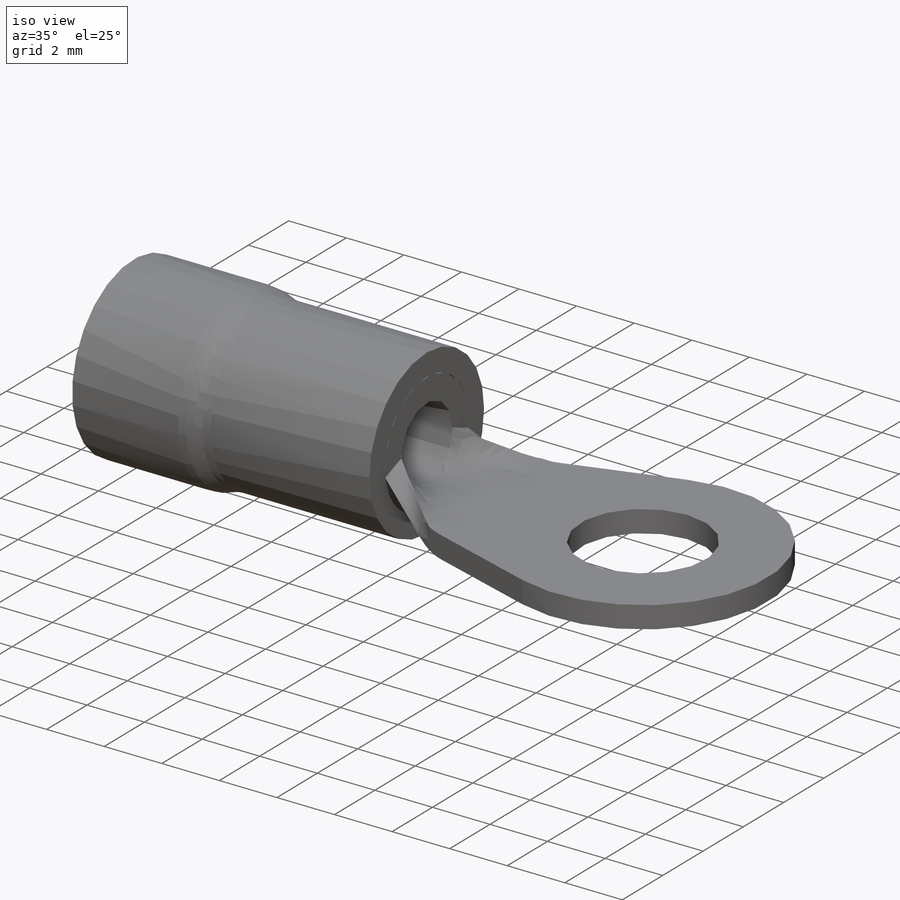
[diagram: iso view]
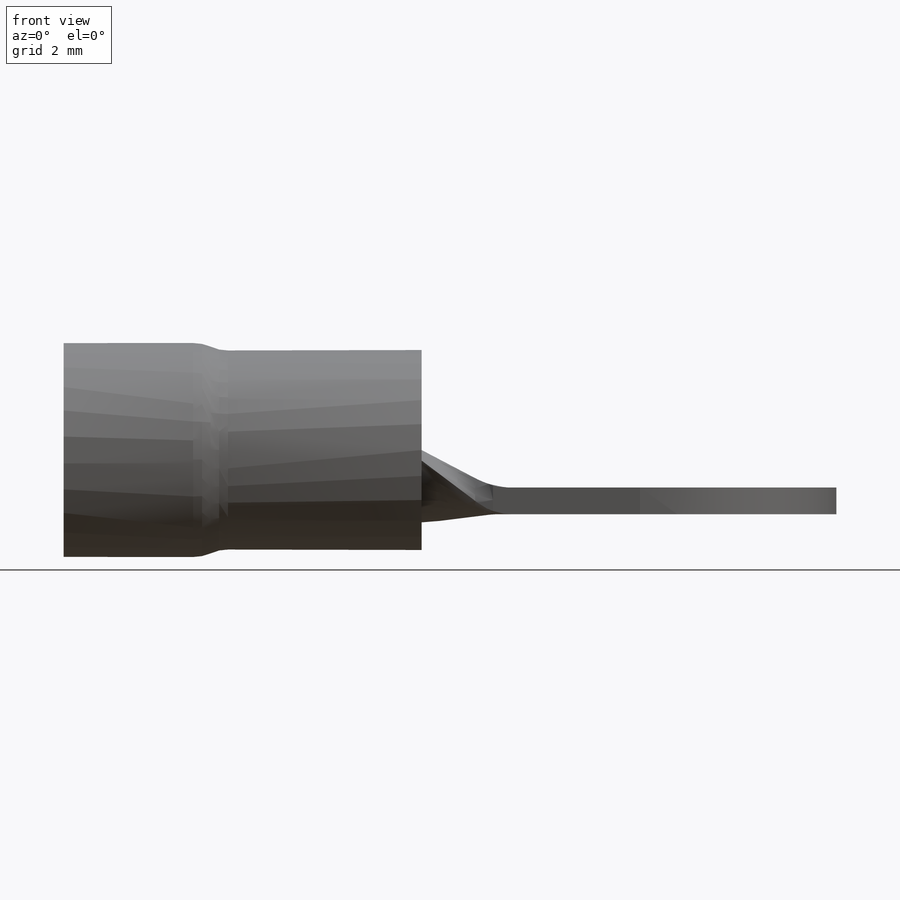
[diagram: front view]
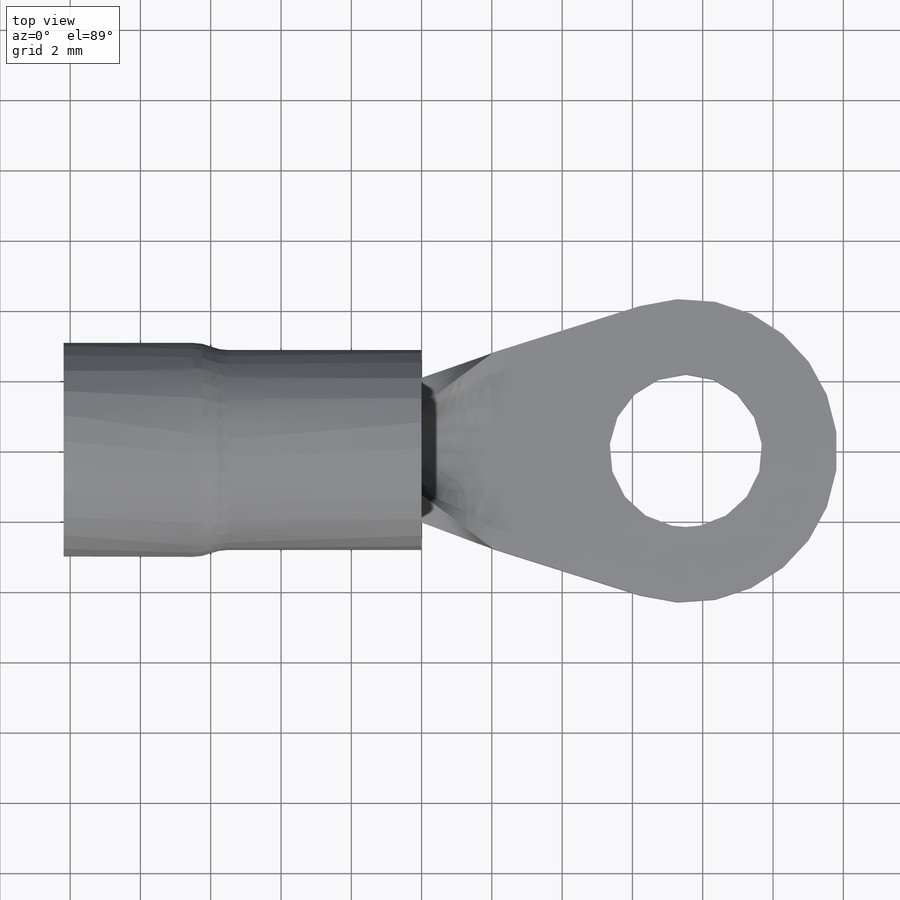
[diagram: top view]
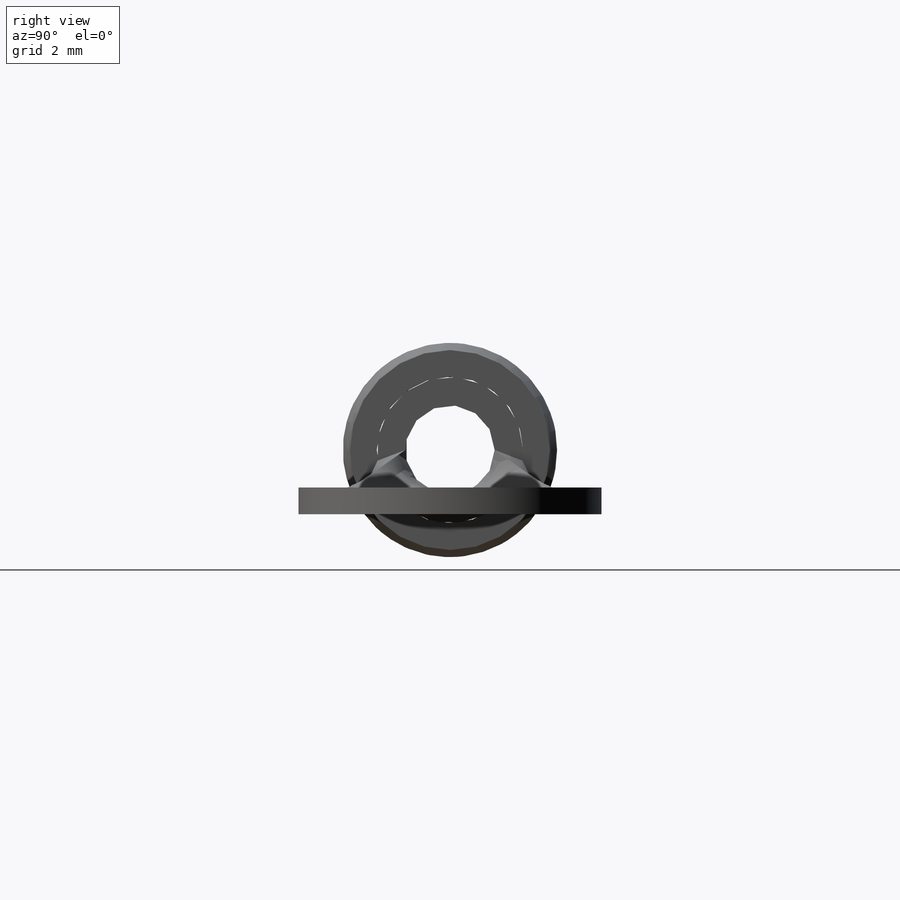
[diagram: right view]
SOLIDWORKS PART (.sldprt)
format: sldprt  version: not decoded by parser v0  size: 275,456 bytes
history: native  units: mm
features: sketch x5, extrude x2, material x1, plane x1, fillet x1 (+12 scaffold rows collapsed)
feature tree (22):
  scaffold x12  (default folders/planes/origin — collapsed)
  material  "Material <not specified>"
  sketch  "Sketch1"  dims[c1.D2=1.27mm c1.D1=6.096mm c1.D3=5.6896mm c1.D4=12.7mm c1.D5=3.683mm c2.D4=10.1854mm c2.D1=360.0deg c2.D3=0.762mm c3.D4=1.0mm c3.D7=0.0mm]
  sketch  "Sketch2"  dims[D1=1.016mm]
  extrude  "Extrude1"  Depth=4.8514mm
  plane  "Plane1"  Offset=1.8288mm
  sketch  "Sketch5"  dims[c1.D3=9.525mm c1.D4=4.3434mm c1.D2=5.0038mm c1.D1=1.6002mm c2.D2=13.4874mm c2.D5=5.588mm c3.D2=14.9098mm c3.D3=27.5717mm c3.D1=3.2512mm c4.D2=17.7038mm c4.D3=2.032mm]
  extrude  "Extrude2"  Depth=0.762mm
  sketch  "Sketch6"  dims[c1.D1=2.8829mm c2.D1=~121.965851deg c3.D1=2.8829mm c4.D1=160.0deg c4.D2=3.429mm]
  fillet  "Fillet1"  Radius=1.27mm
  sketch  "Connection Point Sketch"  dims[Diameter=4.7752mm]
decode coverage: 8 of 8 modeling features carry decoded parameters
note: ~ marks probable driven/reference dimensions
note: suppression state not decoded; provenance and decode notes live in map.json
